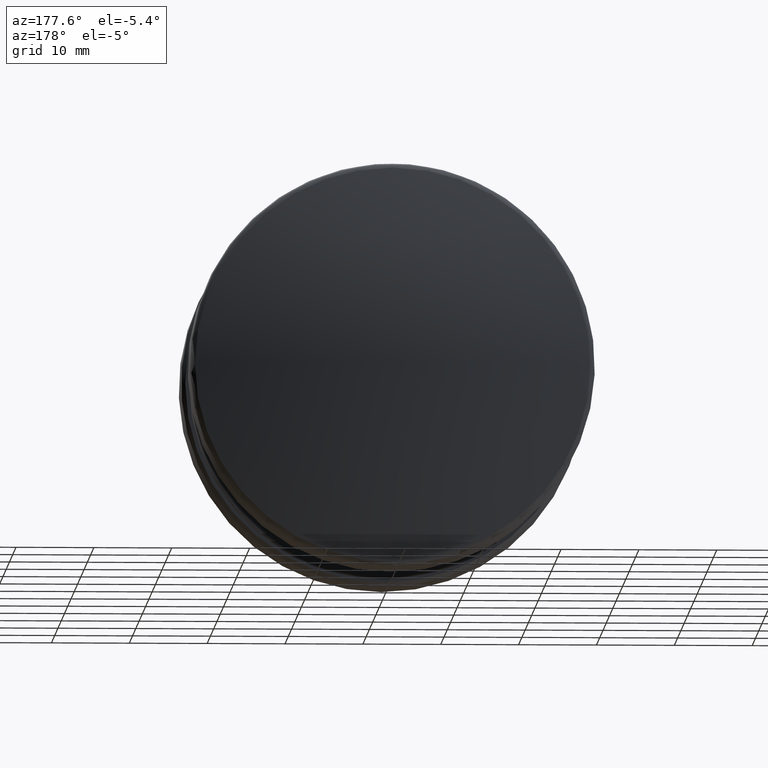
[diagram: clean part render]
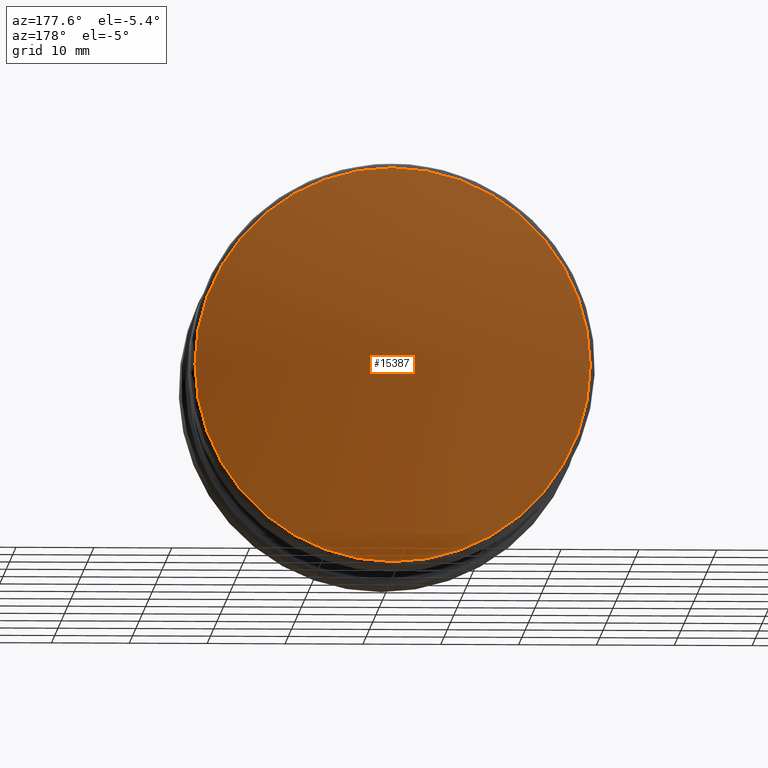
[diagram: same view with one face highlighted and labeled with its STEP entity id]
A machine part, auxiliary view. The second image highlights one B-rep face of the part: STEP entity #15387.
In plain terms, the highlighted spherical surface has radius 114.167 mm.
Its self-contained STEP definition (entity closure, byte-faithful):
#620 = DIRECTION ( 'NONE',  ( 1.000000000000000000, 0.000000000000000000, 0.000000000000000000 ) ) ;
#743 = CARTESIAN_POINT ( 'NONE',  ( 0.000000000000000000, -95.16666666666644403, 0.000000000000000000 ) ) ;
#857 = EDGE_LOOP ( 'NONE', ( #17997 ) ) ;
#2263 = CARTESIAN_POINT ( 'NONE',  ( 0.000000000000000000, 16.14368109908169302, 0.000000000000000000 ) ) ;
#12125 = DIRECTION ( 'NONE',  ( -0.000000000000000000, -1.000000000000000000, -0.000000000000000000 ) ) ;
#12636 = SPHERICAL_SURFACE ( 'NONE', #15630, 114.1666666666664440 ) ;
#14147 = CIRCLE ( 'NONE', #17385, 25.37783004998528824 ) ;
#14849 = DIRECTION ( 'NONE',  ( 0.000000000000000000, 0.000000000000000000, -1.000000000000000000 ) ) ;
#15387 = ADVANCED_FACE ( 'NONE', ( #16140 ), #12636, .T. ) ;
#15630 = AXIS2_PLACEMENT_3D ( 'NONE', #743, #17411, #620 ) ;
#16140 = FACE_OUTER_BOUND ( 'NONE', #857, .T. ) ;
#16765 = VERTEX_POINT ( 'NONE', #18198 ) ;
#17385 = AXIS2_PLACEMENT_3D ( 'NONE', #2263, #12125, #14849 ) ;
#17411 = DIRECTION ( 'NONE',  ( 0.000000000000000000, 0.000000000000000000, 1.000000000000000000 ) ) ;
#17820 = EDGE_CURVE ( 'NONE', #16765, #16765, #14147, .T. ) ;
#17997 = ORIENTED_EDGE ( 'NONE', *, *, #17820, .F. ) ;
#18198 = CARTESIAN_POINT ( 'NONE',  ( 0.000000000000000000, 16.14368109908169302, -25.37783004998528824 ) ) ;